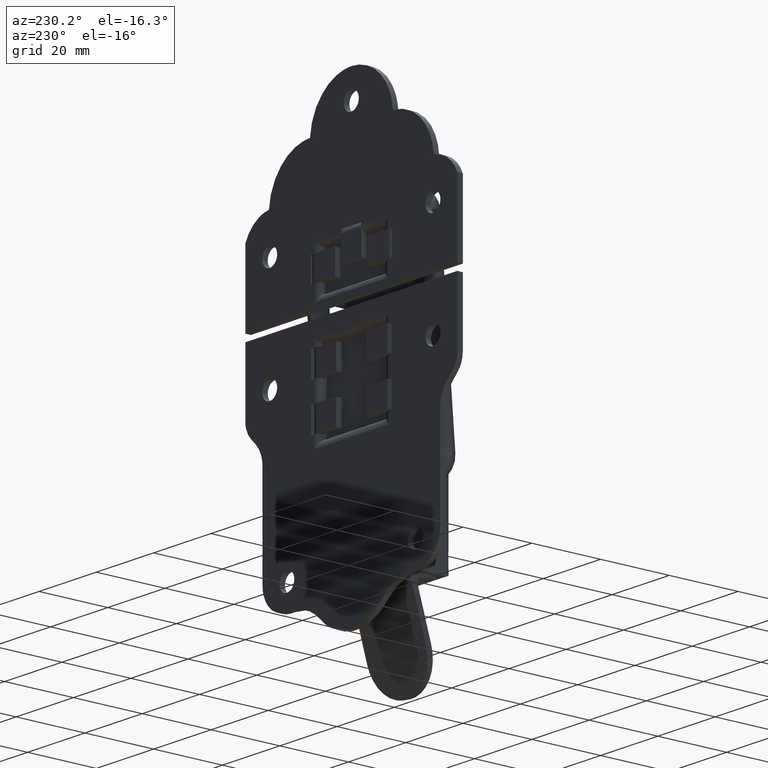
[diagram: clean part render]
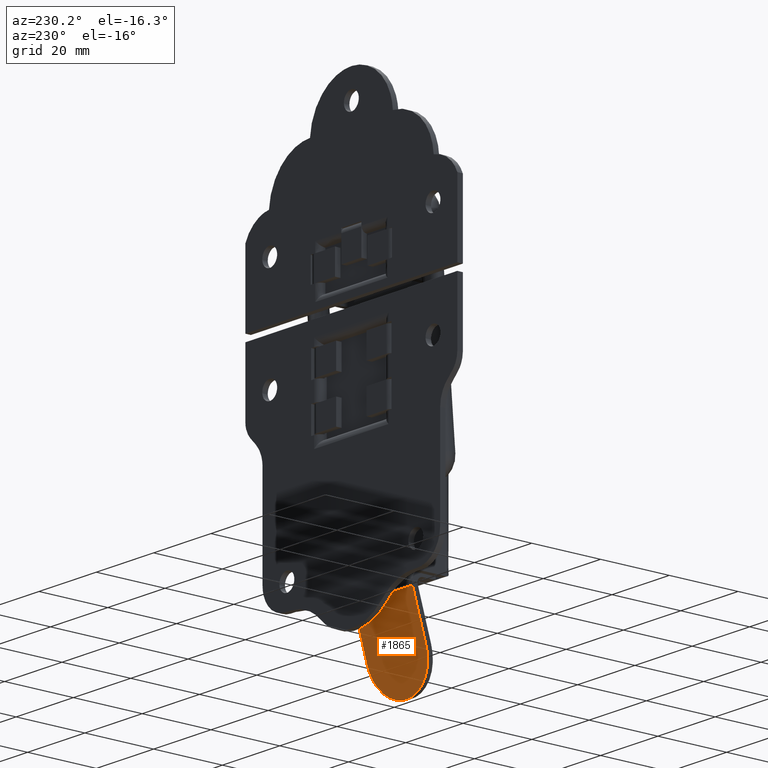
[diagram: same view with one face highlighted and labeled with its STEP entity id]
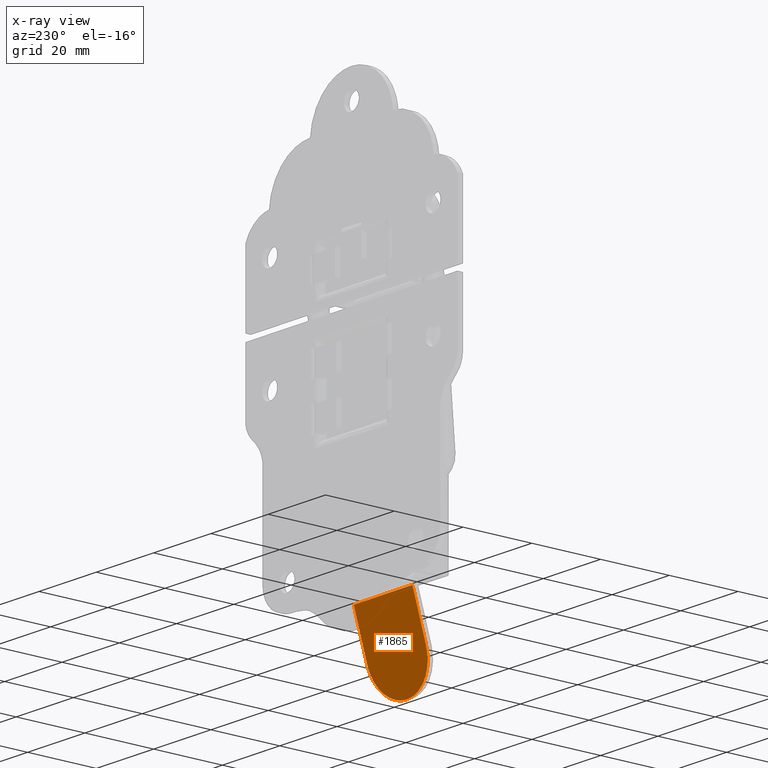
[diagram: x-ray of the same camera — body ghosted, the highlighted face saturated]
A machine part, auxiliary view. The second image highlights one B-rep face of the part: STEP entity #1865.
The next image is the same camera in x-ray: the body ghosted, the highlighted face saturated — about 0% of this face is hidden behind the body in this view.
In plain terms, the highlighted face is a freeform B-spline surface patch.
Its self-contained STEP definition (entity closure, byte-faithful):
#1217=CARTESIAN_POINT('',(10.249700000000001,-0.659855442734426,-51.671143062631700));
#1218=VERTEX_POINT('',#1217);
#1241=CARTESIAN_POINT('',(-10.250299999999999,-0.659855442734426,-51.671143062631700));
#1242=VERTEX_POINT('',#1241);
#1248=CARTESIAN_POINT('',(10.249699999999990,-0.659855442734422,-51.671143062631607));
#1249=CARTESIAN_POINT('',(10.249699999999990,-3.567999934997999,-61.499999780307974));
#1250=CARTESIAN_POINT('',(-0.000299770894654,-3.568000000000094,-61.500000000000050));
#1251=CARTESIAN_POINT('',(-10.250299541789300,-3.568000065002188,-61.500000219692105));
#1252=CARTESIAN_POINT('',(-10.250299999999999,-0.659855442734426,-51.671143062631700));
#1260=(BOUNDED_CURVE()B_SPLINE_CURVE(2,(#1248,#1249,#1250,#1251,#1252),.UNSPECIFIED.,.F.,.U.)B_SPLINE_CURVE_WITH_KNOTS((3,2,3),(0.0,0.500000000000000,1.0),.UNSPECIFIED.)CURVE()GEOMETRIC_REPRESENTATION_ITEM()RATIONAL_B_SPLINE_CURVE((1.0,0.707106789089082,1.0,0.707106789089082,1.0))REPRESENTATION_ITEM(''));
#1261=EDGE_CURVE('',#1218,#1242,#1260,.T.);
#1795=CARTESIAN_POINT('',(10.249700000000001,3.273000000000080,-38.379000000000012));
#1796=VERTEX_POINT('',#1795);
#1814=CARTESIAN_POINT('',(-10.250299999999999,3.273000000000080,-38.379000000000012));
#1815=VERTEX_POINT('',#1814);
#1816=CARTESIAN_POINT('',(-10.250299999999999,3.273000000000080,-38.379000000000012));
#1817=CARTESIAN_POINT('',(10.249700000000001,3.273000000000080,-38.379000000000012));
#1818=QUASI_UNIFORM_CURVE('',1,(#1816,#1817),.UNSPECIFIED.,.F.,.U.);
#1819=EDGE_CURVE('',#1815,#1796,#1818,.T.);
#1846=CARTESIAN_POINT('',(-11.274275464344630,-3.909707912300055,-62.654893822582537));
#1847=CARTESIAN_POINT('',(-11.274275464344630,3.614707606483543,-37.224107211006690));
#1848=CARTESIAN_POINT('',(11.273673998070359,-3.909707912300054,-62.654893822582537));
#1849=CARTESIAN_POINT('',(11.273673998070359,3.614707606483543,-37.224107211006690));
#1850=B_SPLINE_SURFACE_WITH_KNOTS('',1,1,((#1846,#1848),(#1847,#1849)),.UNSPECIFIED.,.F.,.F.,.U.,(2,2),(2,2),(0.0,26.520590803804069),(0.0,22.547949462414980),.UNSPECIFIED.);
#1851=ORIENTED_EDGE('',*,*,#1261,.T.);
#1852=CARTESIAN_POINT('',(-10.250299999999999,-0.659855442734426,-51.671143062631700));
#1853=CARTESIAN_POINT('',(-10.250299999999999,3.273000000000080,-38.379000000000012));
#1854=QUASI_UNIFORM_CURVE('',1,(#1852,#1853),.UNSPECIFIED.,.F.,.U.);
#1855=EDGE_CURVE('',#1242,#1815,#1854,.T.);
#1856=ORIENTED_EDGE('',*,*,#1855,.T.);
#1857=ORIENTED_EDGE('',*,*,#1819,.T.);
#1858=CARTESIAN_POINT('',(10.249700000000001,-0.659855442734426,-51.671143062631700));
#1859=CARTESIAN_POINT('',(10.249700000000001,3.273000000000080,-38.379000000000012));
#1860=QUASI_UNIFORM_CURVE('',1,(#1858,#1859),.UNSPECIFIED.,.F.,.U.);
#1861=EDGE_CURVE('',#1218,#1796,#1860,.T.);
#1862=ORIENTED_EDGE('',*,*,#1861,.F.);
#1863=EDGE_LOOP('',(#1851,#1856,#1857,#1862));
#1864=FACE_OUTER_BOUND('',#1863,.T.);
#1865=ADVANCED_FACE('',(#1864),#1850,.T.);